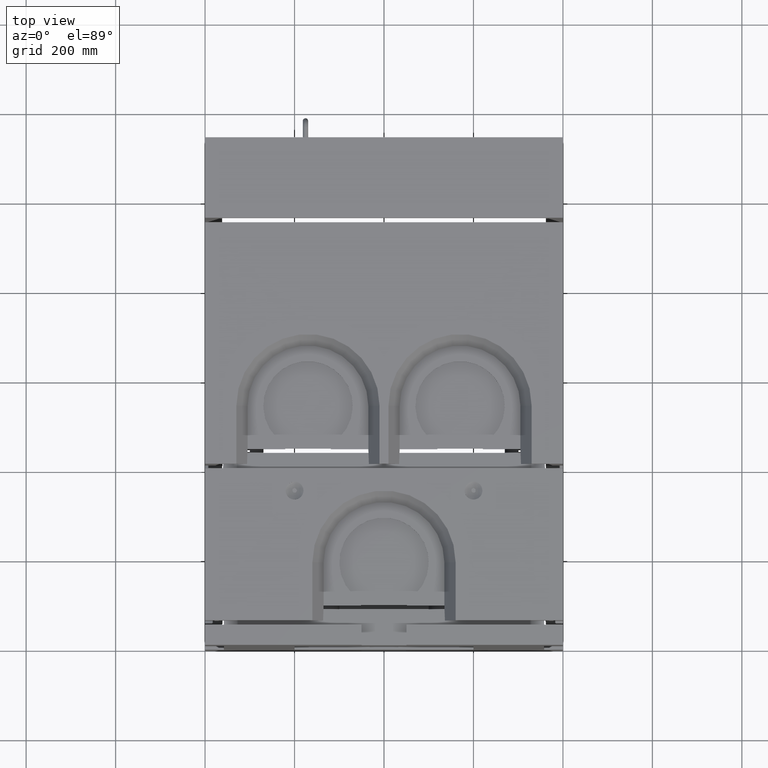
[diagram: clean part render]
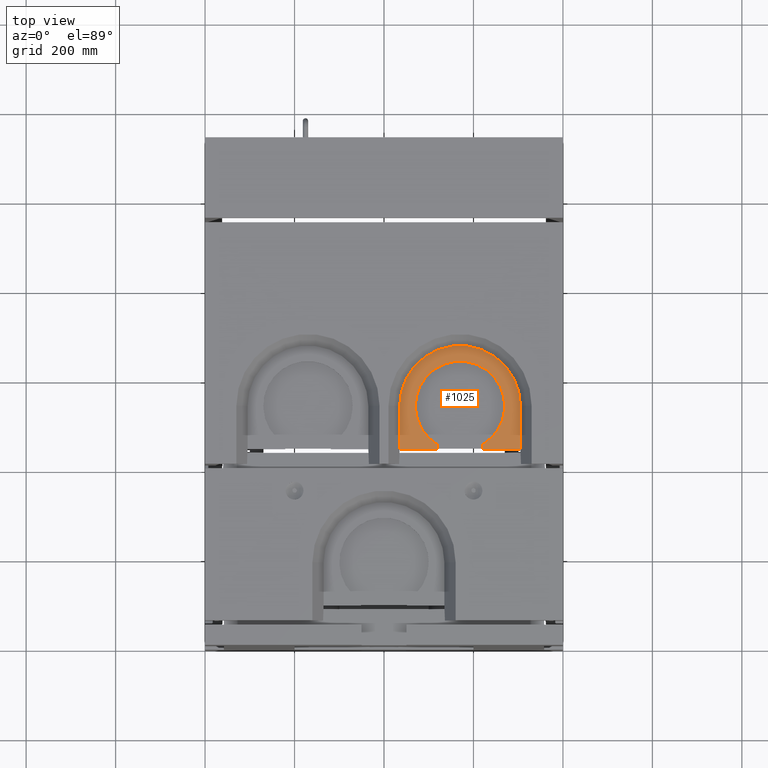
[diagram: same view with one face highlighted and labeled with its STEP entity id]
A machine part, top view. The second image highlights one B-rep face of the part: STEP entity #1025.
In plain terms, the highlighted planar face has unit normal (0, 0, 1).
Its self-contained STEP definition (entity closure, byte-faithful):
#77 = DIRECTION ( 'NONE',  ( 0.000000000000000000, 1.000000000000000000, -0.000000000000000000 ) ) ;
#1025 = ADVANCED_FACE ( 'NONE', ( #19312 ), #5914, .T. ) ;
#2309 = EDGE_CURVE ( 'NONE', #8583, #23841, #18343, .T. ) ;
#3321 = DIRECTION ( 'NONE',  ( -0.000000000000000000, -0.000000000000000000, -1.000000000000000000 ) ) ;
#3362 = VECTOR ( 'NONE', #25002, 1000.000000000000000 ) ;
#3956 = VECTOR ( 'NONE', #23077, 1000.000000000000000 ) ;
#4366 = VERTEX_POINT ( 'NONE', #9771 ) ;
#5914 = PLANE ( 'NONE',  #15499 ) ;
#6118 = VECTOR ( 'NONE', #27117, 1000.000000000000000 ) ;
#6207 = CARTESIAN_POINT ( 'NONE',  ( 34.99477407637313320, 534.9999999999998863, 360.0000000000000000 ) ) ;
#6422 = ORIENTED_EDGE ( 'NONE', *, *, #9628, .F. ) ;
#8032 = CARTESIAN_POINT ( 'NONE',  ( 305.0052259236268242, 534.9999999999998863, 360.0000000000000000 ) ) ;
#8495 = CARTESIAN_POINT ( 'NONE',  ( 118.9999999999999432, 448.9825599078884011, 360.0000000000000000 ) ) ;
#8583 = VERTEX_POINT ( 'NONE', #6207 ) ;
#8718 = ORIENTED_EDGE ( 'NONE', *, *, #20647, .F. ) ;
#8771 = CARTESIAN_POINT ( 'NONE',  ( 118.9999999999999432, 534.9999999999998863, 360.0000000000000000 ) ) ;
#9081 = VERTEX_POINT ( 'NONE', #8495 ) ;
#9628 = EDGE_CURVE ( 'NONE', #23841, #13195, #27653, .T. ) ;
#9771 = CARTESIAN_POINT ( 'NONE',  ( 220.9999999999999147, 438.0021868673700283, 359.9999999999999432 ) ) ;
#9774 = DIRECTION ( 'NONE',  ( -0.000000000000000000, -0.000000000000000000, -1.000000000000000000 ) ) ;
#10037 = EDGE_CURVE ( 'NONE', #11876, #9081, #19396, .T. ) ;
#11876 = VERTEX_POINT ( 'NONE', #24987 ) ;
#12311 = ORIENTED_EDGE ( 'NONE', *, *, #10037, .T. ) ;
#12556 = EDGE_LOOP ( 'NONE', ( #18659, #19299, #13091, #6422, #13828, #8718, #27842, #12311 ) ) ;
#13091 = ORIENTED_EDGE ( 'NONE', *, *, #26572, .T. ) ;
#13195 = VERTEX_POINT ( 'NONE', #15355 ) ;
#13828 = ORIENTED_EDGE ( 'NONE', *, *, #2309, .F. ) ;
#15355 = CARTESIAN_POINT ( 'NONE',  ( 305.0052259236268242, 438.0021868673700283, 360.0000000000000000 ) ) ;
#15499 = AXIS2_PLACEMENT_3D ( 'NONE', #27471, #20791, #27576 ) ;
#16004 = CARTESIAN_POINT ( 'NONE',  ( 305.0052259236268242, 534.9999999999998863, 360.0000000000000000 ) ) ;
#17426 = VERTEX_POINT ( 'NONE', #25484 ) ;
#18129 = LINE ( 'NONE', #27093, #3362 ) ;
#18343 = CIRCLE ( 'NONE', #21872, 135.0052259236268526 ) ;
#18550 = LINE ( 'NONE', #22454, #6118 ) ;
#18642 = VECTOR ( 'NONE', #19149, 1000.000000000000000 ) ;
#18659 = ORIENTED_EDGE ( 'NONE', *, *, #22379, .T. ) ;
#19149 = DIRECTION ( 'NONE',  ( 1.000000000000000000, 3.162965100408823905E-16, -0.000000000000000000 ) ) ;
#19299 = ORIENTED_EDGE ( 'NONE', *, *, #27852, .T. ) ;
#19312 = FACE_OUTER_BOUND ( 'NONE', #12556, .T. ) ;
#19396 = LINE ( 'NONE', #8771, #20768 ) ;
#19583 = AXIS2_PLACEMENT_3D ( 'NONE', #22938, #3321, #27306 ) ;
#20048 = LINE ( 'NONE', #25436, #23535 ) ;
#20647 = EDGE_CURVE ( 'NONE', #26437, #8583, #20048, .T. ) ;
#20768 = VECTOR ( 'NONE', #77, 1000.000000000000000 ) ;
#20791 = DIRECTION ( 'NONE',  ( 0.000000000000000000, 0.000000000000000000, 1.000000000000000000 ) ) ;
#21667 = CARTESIAN_POINT ( 'NONE',  ( 361.9999999999999432, 438.0021868673700851, 360.0000000000000000 ) ) ;
#21872 = AXIS2_PLACEMENT_3D ( 'NONE', #22757, #9774, #24927 ) ;
#22004 = LINE ( 'NONE', #21667, #18642 ) ;
#22379 = EDGE_CURVE ( 'NONE', #9081, #17426, #23032, .T. ) ;
#22454 = CARTESIAN_POINT ( 'NONE',  ( 361.9999999999999432, 438.0021868673700851, 360.0000000000000000 ) ) ;
#22742 = EDGE_CURVE ( 'NONE', #26437, #11876, #18550, .T. ) ;
#22757 = CARTESIAN_POINT ( 'NONE',  ( 169.9999999999999716, 534.9999999999998863, 360.0000000000000000 ) ) ;
#22938 = CARTESIAN_POINT ( 'NONE',  ( 169.9999999999999716, 534.9999999999998863, 359.9999999999999432 ) ) ;
#23032 = CIRCLE ( 'NONE', #19583, 100.0000000000000000 ) ;
#23077 = DIRECTION ( 'NONE',  ( 0.000000000000000000, -1.000000000000000000, -0.000000000000000000 ) ) ;
#23535 = VECTOR ( 'NONE', #27819, 1000.000000000000000 ) ;
#23841 = VERTEX_POINT ( 'NONE', #16004 ) ;
#24927 = DIRECTION ( 'NONE',  ( 1.000000000000000000, 0.000000000000000000, 0.000000000000000000 ) ) ;
#24987 = CARTESIAN_POINT ( 'NONE',  ( 118.9999999999999432, 438.0021868673700283, 359.9999999999999432 ) ) ;
#25002 = DIRECTION ( 'NONE',  ( 0.000000000000000000, -1.000000000000000000, 0.000000000000000000 ) ) ;
#25436 = CARTESIAN_POINT ( 'NONE',  ( 34.99477407637313320, 534.9999999999998863, 360.0000000000000000 ) ) ;
#25484 = CARTESIAN_POINT ( 'NONE',  ( 220.9999999999999147, 448.9825599078883442, 359.9999999999999432 ) ) ;
#26074 = CARTESIAN_POINT ( 'NONE',  ( 34.99477407637313320, 438.0021868673700283, 360.0000000000000000 ) ) ;
#26437 = VERTEX_POINT ( 'NONE', #26074 ) ;
#26572 = EDGE_CURVE ( 'NONE', #4366, #13195, #22004, .T. ) ;
#27093 = CARTESIAN_POINT ( 'NONE',  ( 220.9999999999999147, 448.9825599078883442, 359.9999999999999432 ) ) ;
#27117 = DIRECTION ( 'NONE',  ( 1.000000000000000000, 3.162965100408823905E-16, -0.000000000000000000 ) ) ;
#27306 = DIRECTION ( 'NONE',  ( -1.000000000000000000, 0.000000000000000000, 0.000000000000000000 ) ) ;
#27471 = CARTESIAN_POINT ( 'NONE',  ( 169.9999999999999716, 534.9999999999998863, 360.0000000000000000 ) ) ;
#27576 = DIRECTION ( 'NONE',  ( -1.000000000000000000, 0.000000000000000000, 0.000000000000000000 ) ) ;
#27653 = LINE ( 'NONE', #8032, #3956 ) ;
#27819 = DIRECTION ( 'NONE',  ( 2.220446049250313081E-16, 1.000000000000000000, -0.000000000000000000 ) ) ;
#27842 = ORIENTED_EDGE ( 'NONE', *, *, #22742, .T. ) ;
#27852 = EDGE_CURVE ( 'NONE', #17426, #4366, #18129, .T. ) ;